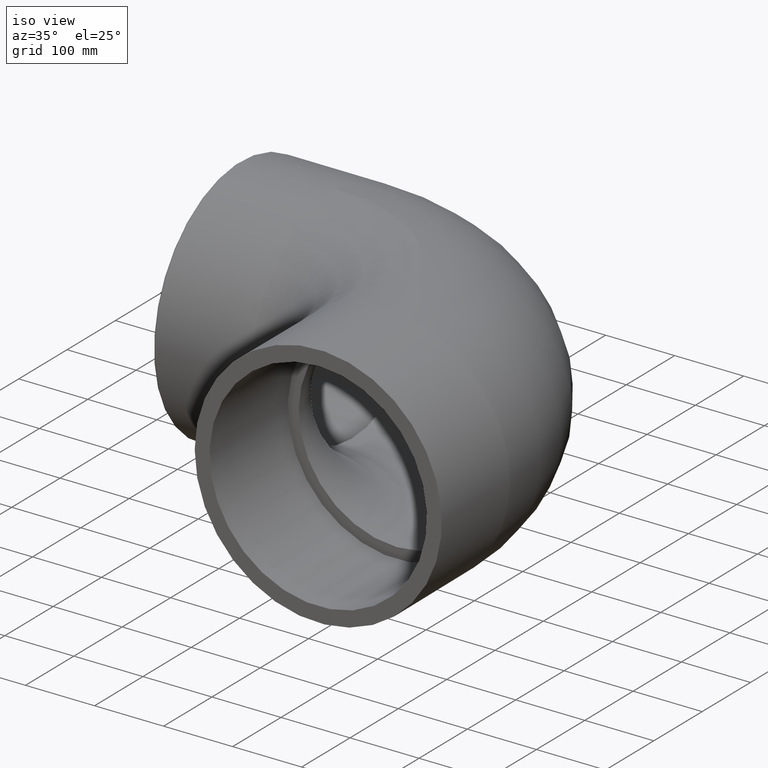
[diagram: clean part render]
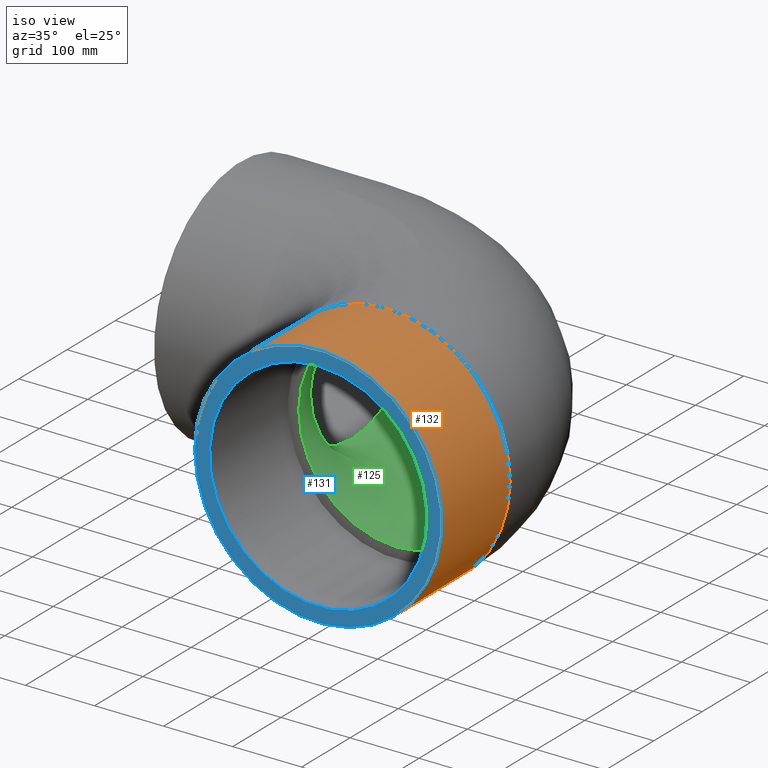
[diagram: same view with three faces highlighted in distinct colors, each labeled with its STEP entity id]
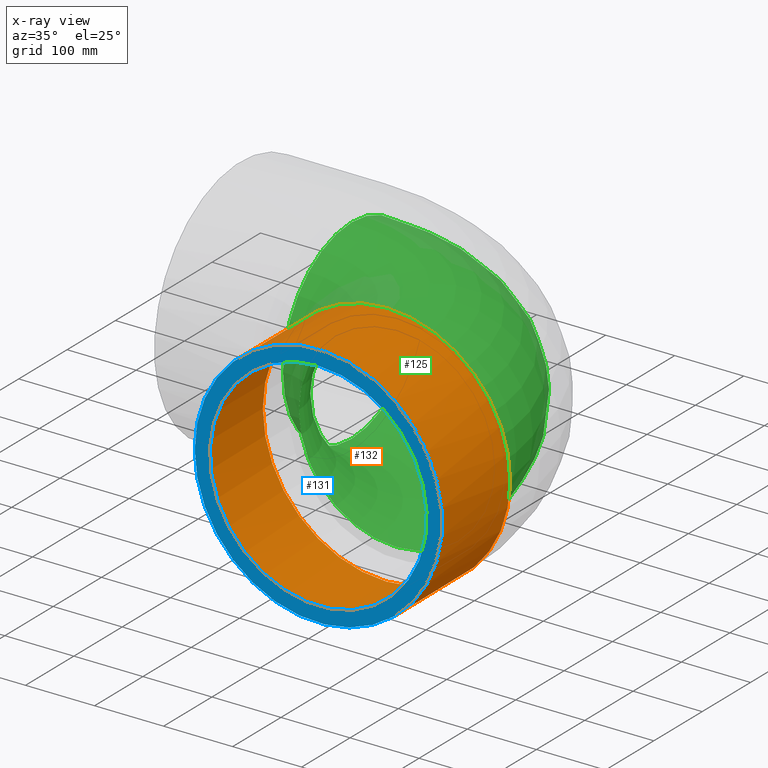
[diagram: x-ray of the same camera — body ghosted, the three highlighted faces saturated]
A machine part, iso view with three faces highlighted in distinct colors.
The next image is the same camera in x-ray (body ghosted, the three faces saturated) — at least one of them is partly hidden behind the body in this view.
Their STEP definitions:

[orange] entity #132 — the highlighted cylindrical surface (bore or boss wall) has radius 179 mm, axis along (0, 1, 0).
#21=CYLINDRICAL_SURFACE('',#154,179.);
#30=FACE_BOUND('',#60,.T.);
#41=FACE_OUTER_BOUND('',#59,.T.);
#59=EDGE_LOOP('',(#114));
#60=EDGE_LOOP('',(#115));
#73=CIRCLE('',#150,179.);
#75=CIRCLE('',#153,179.);
#84=VERTEX_POINT('',#225);
#86=VERTEX_POINT('',#230);
#95=EDGE_CURVE('',#84,#84,#73,.T.);
#97=EDGE_CURVE('',#86,#86,#75,.T.);
#114=ORIENTED_EDGE('',*,*,#97,.T.);
#115=ORIENTED_EDGE('',*,*,#95,.F.);
#132=ADVANCED_FACE('',(#41,#30),#21,.T.);
#150=AXIS2_PLACEMENT_3D('',#226,#186,#187);
#153=AXIS2_PLACEMENT_3D('',#231,#192,#193);
#154=AXIS2_PLACEMENT_3D('',#232,#194,#195);
#186=DIRECTION('center_axis',(6.12323399573677E-17,1.,0.));
#187=DIRECTION('ref_axis',(0.,0.,-1.));
#192=DIRECTION('center_axis',(6.12323399573677E-17,1.,0.));
#193=DIRECTION('ref_axis',(0.,0.,-1.));
#194=DIRECTION('center_axis',(6.12323399573677E-17,1.,0.));
#195=DIRECTION('ref_axis',(-1.,6.12323399573676E-17,0.));
#225=CARTESIAN_POINT('',(-1.77635683940025E-14,-239.,179.));
#226=CARTESIAN_POINT('Origin',(-1.46345292498109E-14,-239.,0.));
#230=CARTESIAN_POINT('',(-179.,-380.,0.));
#231=CARTESIAN_POINT('Origin',(-2.32682891837997E-14,-380.,0.));
#232=CARTESIAN_POINT('Origin',(-1.89514092168053E-14,-309.5,0.));

[blue] entity #131 — the highlighted planar face has unit normal (-0, -1, 0).
#17=PLANE('',#152);
#29=FACE_BOUND('',#58,.T.);
#40=FACE_OUTER_BOUND('',#57,.T.);
#57=EDGE_LOOP('',(#112));
#58=EDGE_LOOP('',(#113));
#70=CIRCLE('',#143,157.5);
#75=CIRCLE('',#153,179.);
#81=VERTEX_POINT('',#215);
#86=VERTEX_POINT('',#230);
#92=EDGE_CURVE('',#81,#81,#70,.T.);
#97=EDGE_CURVE('',#86,#86,#75,.T.);
#112=ORIENTED_EDGE('',*,*,#97,.F.);
#113=ORIENTED_EDGE('',*,*,#92,.T.);
#131=ADVANCED_FACE('',(#40,#29),#17,.T.);
#143=AXIS2_PLACEMENT_3D('',#216,#172,#173);
#152=AXIS2_PLACEMENT_3D('',#229,#190,#191);
#153=AXIS2_PLACEMENT_3D('',#231,#192,#193);
#172=DIRECTION('center_axis',(6.12323399573677E-17,1.,0.));
#173=DIRECTION('ref_axis',(0.,0.,-1.));
#190=DIRECTION('center_axis',(-6.12323399573677E-17,-1.,0.));
#191=DIRECTION('ref_axis',(0.,0.,1.));
#192=DIRECTION('center_axis',(6.12323399573677E-17,1.,0.));
#193=DIRECTION('ref_axis',(0.,0.,-1.));
#215=CARTESIAN_POINT('',(-4.25564762703705E-14,-380.,157.5));
#216=CARTESIAN_POINT('Origin',(-2.32682891837997E-14,-380.,0.));
#229=CARTESIAN_POINT('Origin',(-179.,-380.,0.));
#230=CARTESIAN_POINT('',(-179.,-380.,0.));
#231=CARTESIAN_POINT('Origin',(-2.32682891837997E-14,-380.,0.));

[green] entity #125 — the highlighted toroidal blend (fillet) surface has major radius 218 mm and minor (blend) radius 141.75 mm.
#23=FACE_BOUND('',#46,.T.);
#34=FACE_OUTER_BOUND('',#45,.T.);
#45=EDGE_LOOP('',(#100));
#46=EDGE_LOOP('',(#101));
#67=CIRCLE('',#139,141.75);
#68=CIRCLE('',#140,141.75);
#78=VERTEX_POINT('',#208);
#79=VERTEX_POINT('',#210);
#89=EDGE_CURVE('',#78,#78,#67,.T.);
#90=EDGE_CURVE('',#79,#79,#68,.T.);
#100=ORIENTED_EDGE('',*,*,#89,.F.);
#101=ORIENTED_EDGE('',*,*,#90,.F.);
#122=TOROIDAL_SURFACE('',#138,218.,141.75);
#125=ADVANCED_FACE('',(#34,#23),#122,.F.);
#138=AXIS2_PLACEMENT_3D('',#207,#162,#163);
#139=AXIS2_PLACEMENT_3D('',#209,#164,#165);
#140=AXIS2_PLACEMENT_3D('',#211,#166,#167);
#162=DIRECTION('center_axis',(0.,0.,-1.));
#163=DIRECTION('ref_axis',(-1.,0.,0.));
#164=DIRECTION('center_axis',(6.12323399573677E-17,1.,0.));
#165=DIRECTION('ref_axis',(1.,-6.12323399573677E-17,0.));
#166=DIRECTION('center_axis',(1.,0.,0.));
#167=DIRECTION('ref_axis',(0.,1.,0.));
#207=CARTESIAN_POINT('Origin',(-218.,-218.,0.));
#208=CARTESIAN_POINT('',(1.77635683940025E-14,-218.,141.75));
#209=CARTESIAN_POINT('Origin',(0.,-218.,0.));
#210=CARTESIAN_POINT('',(-218.,1.73593683779137E-14,141.75));
#211=CARTESIAN_POINT('Origin',(-218.,0.,0.));